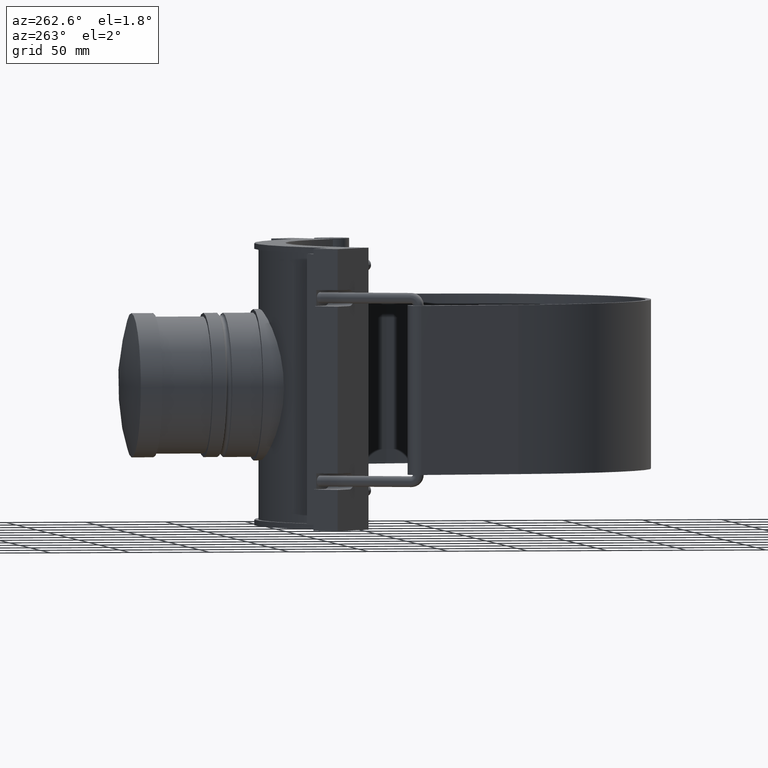
[diagram: clean part render]
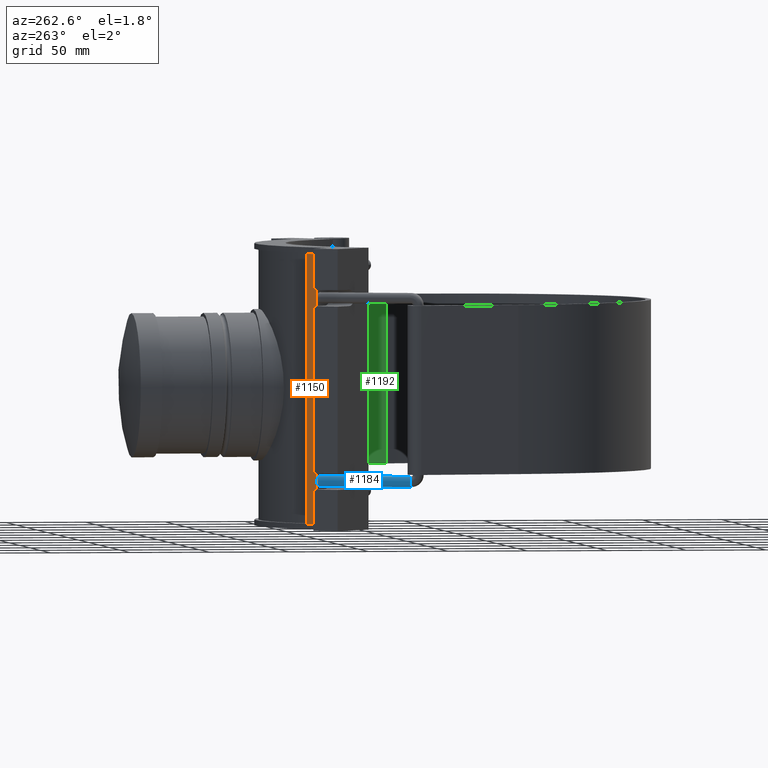
[diagram: same view with three faces highlighted in distinct colors, each labeled with its STEP entity id]
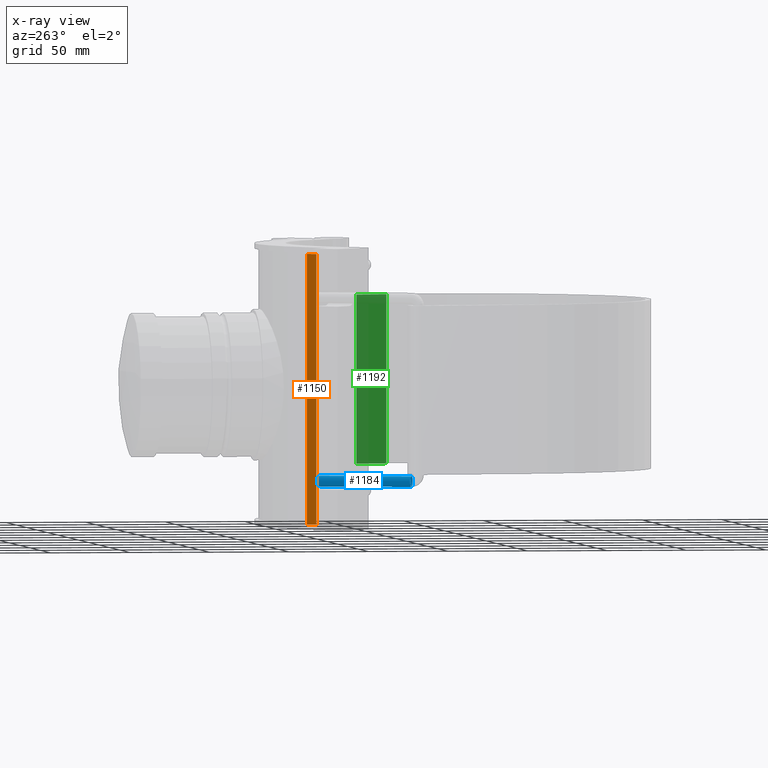
[diagram: x-ray of the same camera — body ghosted, the three highlighted faces saturated]
A machine part, auxiliary view with three faces highlighted in distinct colors.
The next image is the same camera in x-ray (body ghosted, the three faces saturated) — at least one of them is partly hidden behind the body in this view.
Their STEP definitions:

[orange] entity #1150 — the highlighted planar face has unit normal (-0.766, 0.6428, 0).
#24=LINE('',#1853,#127);
#29=LINE('',#1872,#132);
#31=LINE('',#1879,#134);
#32=LINE('',#1880,#135);
#33=LINE('',#1881,#136);
#34=LINE('',#1883,#137);
#35=LINE('',#1885,#138);
#36=LINE('',#1886,#139);
#127=VECTOR('',#1367,10.125);
#132=VECTOR('',#1382,10.125);
#134=VECTOR('',#1388,6.97384509239614);
#135=VECTOR('',#1389,22.2175);
#136=VECTOR('',#1390,104.275);
#137=VECTOR('',#1391,22.2175000000001);
#138=VECTOR('',#1392,6.97384509239614);
#139=VECTOR('',#1393,168.96);
#233=PLANE('',#1235);
#316=FACE_OUTER_BOUND('',#394,.T.);
#394=EDGE_LOOP('',(#823,#824,#825,#826,#827,#828,#829,#830));
#542=VERTEX_POINT('',#1850);
#543=VERTEX_POINT('',#1852);
#551=VERTEX_POINT('',#1869);
#552=VERTEX_POINT('',#1871);
#554=VERTEX_POINT('',#1877);
#555=VERTEX_POINT('',#1878);
#556=VERTEX_POINT('',#1882);
#557=VERTEX_POINT('',#1884);
#650=EDGE_CURVE('',#542,#543,#24,.T.);
#659=EDGE_CURVE('',#551,#552,#29,.T.);
#662=EDGE_CURVE('',#554,#555,#31,.T.);
#663=EDGE_CURVE('',#552,#555,#32,.T.);
#664=EDGE_CURVE('',#543,#551,#33,.T.);
#665=EDGE_CURVE('',#556,#542,#34,.T.);
#666=EDGE_CURVE('',#556,#557,#35,.T.);
#667=EDGE_CURVE('',#557,#554,#36,.T.);
#823=ORIENTED_EDGE('',*,*,#662,.T.);
#824=ORIENTED_EDGE('',*,*,#663,.F.);
#825=ORIENTED_EDGE('',*,*,#659,.F.);
#826=ORIENTED_EDGE('',*,*,#664,.F.);
#827=ORIENTED_EDGE('',*,*,#650,.F.);
#828=ORIENTED_EDGE('',*,*,#665,.F.);
#829=ORIENTED_EDGE('',*,*,#666,.T.);
#830=ORIENTED_EDGE('',*,*,#667,.T.);
#1150=ADVANCED_FACE('',(#316),#233,.T.);
#1235=AXIS2_PLACEMENT_3D('',#1876,#1386,#1387);
#1367=DIRECTION('',(0.,0.,-1.));
#1382=DIRECTION('',(0.,0.,-1.));
#1386=DIRECTION('center_axis',(-0.766044443118976,0.642787609686542,0.));
#1387=DIRECTION('ref_axis',(0.642787609686542,0.766044443118976,0.));
#1388=DIRECTION('',(-0.642787609686542,-0.766044443118976,0.));
#1389=DIRECTION('',(0.,0.,-1.));
#1390=DIRECTION('',(0.,0.,-1.));
#1391=DIRECTION('',(0.,0.,-1.));
#1392=DIRECTION('',(0.642787609686542,0.766044443118976,0.));
#1393=DIRECTION('',(0.,0.,-1.));
#1850=CARTESIAN_POINT('',(-99.258685385541,106.78525750613,62.2625));
#1852=CARTESIAN_POINT('',(-99.258685385541,106.78525750613,52.1375));
#1853=CARTESIAN_POINT('',(-99.258685385541,106.78525750613,84.48));
#1869=CARTESIAN_POINT('',(-99.258685385541,106.78525750613,-52.1375));
#1871=CARTESIAN_POINT('',(-99.258685385541,106.78525750613,-62.2625));
#1872=CARTESIAN_POINT('',(-99.258685385541,106.78525750613,84.48));
#1876=CARTESIAN_POINT('Origin',(-99.258685385541,106.78525750613,84.48));
#1877=CARTESIAN_POINT('',(-94.7759841682755,112.127532786333,-84.48));
#1878=CARTESIAN_POINT('',(-99.258685385541,106.78525750613,-84.48));
#1879=CARTESIAN_POINT('',(-98.1380100812246,108.120826326181,-84.48));
#1880=CARTESIAN_POINT('',(-99.258685385541,106.78525750613,-1.75999999999999));
#1881=CARTESIAN_POINT('',(-99.258685385541,106.78525750613,-1.75999999999999));
#1882=CARTESIAN_POINT('',(-99.258685385541,106.78525750613,84.48));
#1883=CARTESIAN_POINT('',(-99.258685385541,106.78525750613,-1.75999999999999));
#1884=CARTESIAN_POINT('',(-94.7759841682755,112.127532786333,84.48));
#1885=CARTESIAN_POINT('',(-99.258685385541,106.78525750613,84.48));
#1886=CARTESIAN_POINT('',(-94.7759841682755,112.127532786333,84.48));

[blue] entity #1184 — the highlighted cylindrical surface (bore or boss wall) has radius 3.375 mm, axis along (0.342, 0.9397, -0).
#22=ELLIPSE('',#1234,3.59159998210624,3.37500000000003);
#284=FACE_BOUND('',#435,.T.);
#350=FACE_OUTER_BOUND('',#434,.T.);
#434=EDGE_LOOP('',(#1027));
#435=EDGE_LOOP('',(#1028));
#517=CIRCLE('',#1296,3.37500000000003);
#553=VERTEX_POINT('',#1874);
#626=VERTEX_POINT('',#2092);
#661=EDGE_CURVE('',#553,#553,#22,.T.);
#771=EDGE_CURVE('',#626,#626,#517,.T.);
#1027=ORIENTED_EDGE('',*,*,#661,.T.);
#1028=ORIENTED_EDGE('',*,*,#771,.T.);
#1127=CYLINDRICAL_SURFACE('',#1295,3.37500000000003);
#1184=ADVANCED_FACE('',(#350,#284),#1127,.T.);
#1234=AXIS2_PLACEMENT_3D('',#1875,#1384,#1385);
#1295=AXIS2_PLACEMENT_3D('',#2091,#1589,#1590);
#1296=AXIS2_PLACEMENT_3D('',#2093,#1591,#1592);
#1384=DIRECTION('center_axis',(-0.64278760968654,-0.766044443118978,0.));
#1385=DIRECTION('ref_axis',(-0.766044443118978,0.64278760968654,-2.13667217310528E-17));
#1589=DIRECTION('center_axis',(0.342020143325666,0.93969262078591,-6.24721150143119E-17));
#1590=DIRECTION('ref_axis',(-0.939692620785909,0.342020143325666,0.));
#1591=DIRECTION('center_axis',(0.342020143325666,0.939692620785909,-6.12323399573677E-17));
#1592=DIRECTION('ref_axis',(0.883022221559491,-0.321393804843267,0.342020143325667));
#1874=CARTESIAN_POINT('',(-93.3412650403047,101.819952276922,-57.2));
#1875=CARTESIAN_POINT('Origin',(-96.0925902485034,104.12858824437,-57.2));
#2091=CARTESIAN_POINT('Origin',(-116.108747733003,49.134647531458,-57.2));
#2092=CARTESIAN_POINT('',(-119.088947730767,50.219351622804,-58.3543179837241));
#2093=CARTESIAN_POINT('Origin',(-116.108747733003,49.134647531458,-57.2));

[green] entity #1192 — the highlighted planar face has unit normal (-0.9474, -0.3202, 0).
#105=LINE('',#2056,#208);
#108=LINE('',#2068,#211);
#117=LINE('',#2108,#220);
#119=LINE('',#2111,#222);
#208=VECTOR('',#1558,20.9232094777174);
#211=VECTOR('',#1569,20.9232094777174);
#220=VECTOR('',#1616,105.6);
#222=VECTOR('',#1620,105.6);
#263=PLANE('',#1307);
#358=FACE_OUTER_BOUND('',#446,.T.);
#446=EDGE_LOOP('',(#1053,#1054,#1055,#1056));
#609=VERTEX_POINT('',#2053);
#610=VERTEX_POINT('',#2055);
#614=VERTEX_POINT('',#2066);
#615=VERTEX_POINT('',#2067);
#752=EDGE_CURVE('',#609,#610,#105,.T.);
#758=EDGE_CURVE('',#614,#615,#108,.T.);
#778=EDGE_CURVE('',#610,#614,#117,.T.);
#780=EDGE_CURVE('',#609,#615,#119,.T.);
#1053=ORIENTED_EDGE('',*,*,#778,.F.);
#1054=ORIENTED_EDGE('',*,*,#752,.F.);
#1055=ORIENTED_EDGE('',*,*,#780,.T.);
#1056=ORIENTED_EDGE('',*,*,#758,.F.);
#1192=ADVANCED_FACE('',(#358),#263,.T.);
#1307=AXIS2_PLACEMENT_3D('',#2110,#1618,#1619);
#1558=DIRECTION('',(-0.320171081121208,0.947359740971547,0.));
#1569=DIRECTION('',(0.320171081121208,-0.947359740971547,0.));
#1616=DIRECTION('',(0.,0.,1.));
#1618=DIRECTION('center_axis',(-0.947359740971547,-0.320171081121208,0.));
#1619=DIRECTION('ref_axis',(0.320171081121208,-0.947359740971547,0.));
#1620=DIRECTION('',(0.,0.,1.));
#2053=CARTESIAN_POINT('',(106.577970859299,36.019246626136,-52.8));
#2055=CARTESIAN_POINT('',(99.8789642602927,55.8410529372398,-52.8));
#2056=CARTESIAN_POINT('',(97.6891680622049,62.3204787234043,-52.8));
#2066=CARTESIAN_POINT('',(99.8789642602927,55.8410529372398,52.8));
#2067=CARTESIAN_POINT('',(106.577970859299,36.019246626136,52.8));
#2068=CARTESIAN_POINT('',(97.6891680622049,62.3204787234043,52.8));
#2108=CARTESIAN_POINT('',(99.8789642602927,55.8410529372398,0.));
#2110=CARTESIAN_POINT('Origin',(97.6891680622049,62.3204787234043,0.));
#2111=CARTESIAN_POINT('',(106.577970859299,36.019246626136,0.));